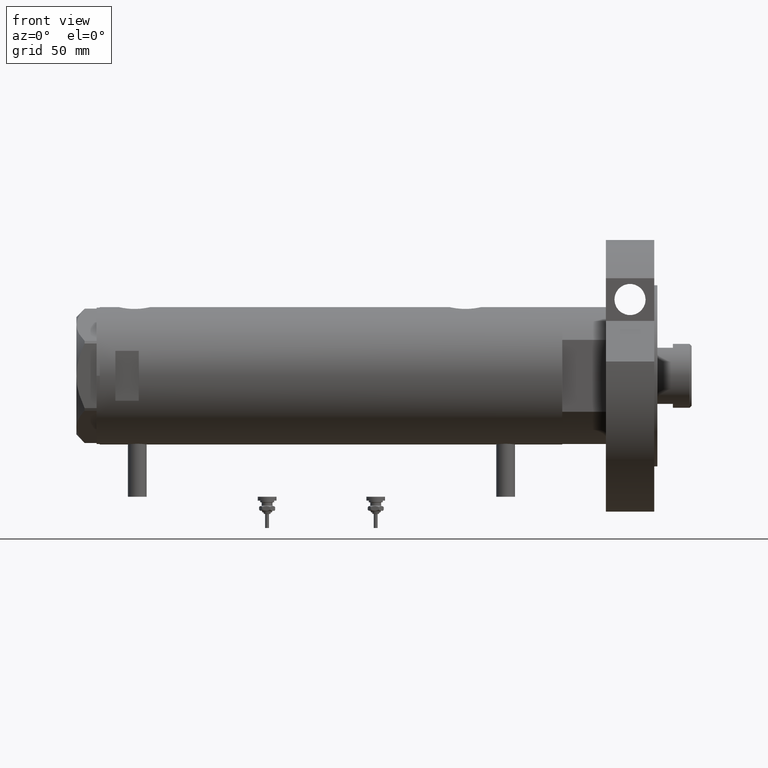
[diagram: clean part render]
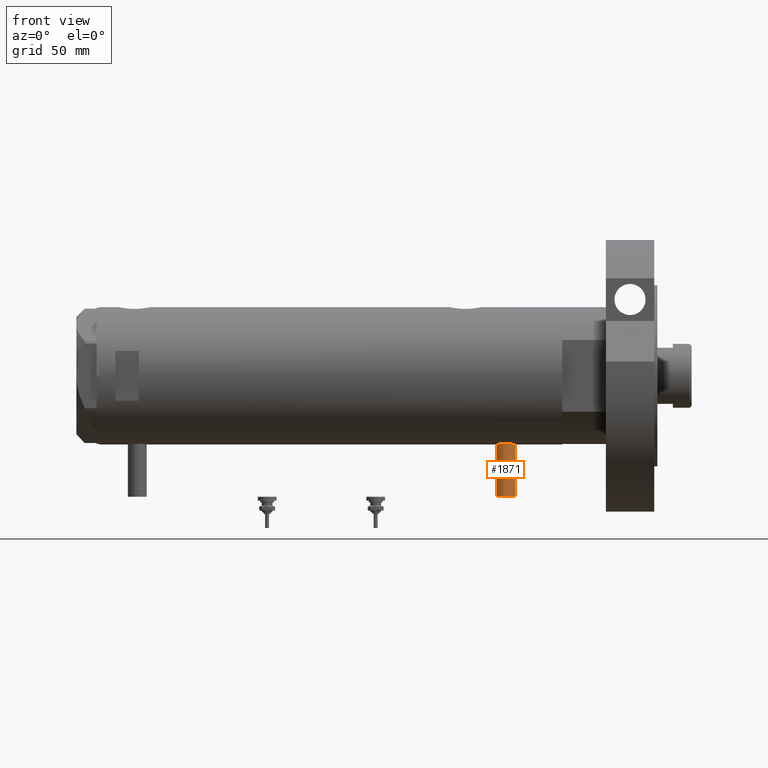
[diagram: same view with one face highlighted and labeled with its STEP entity id]
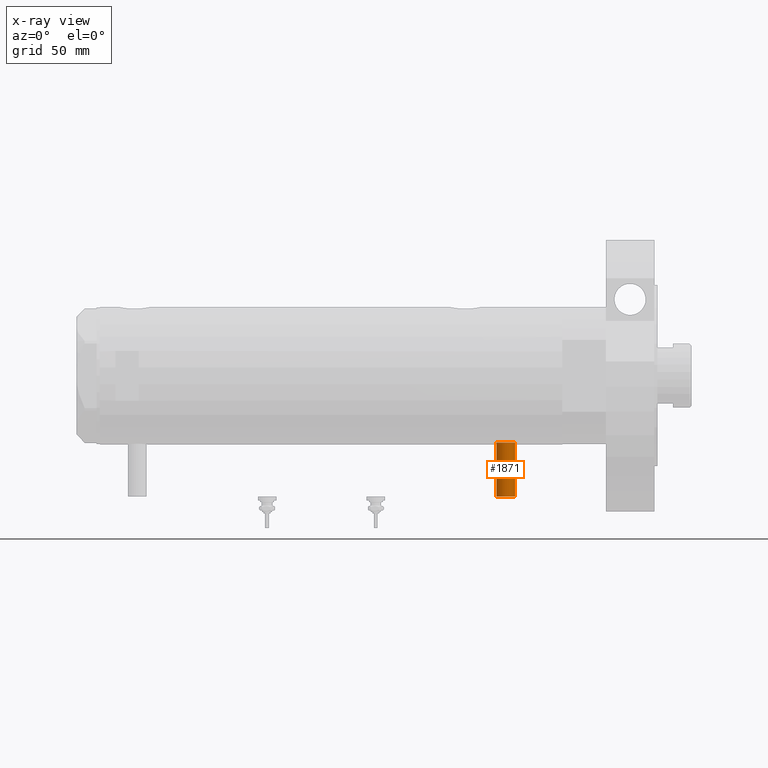
[diagram: x-ray of the same camera — body ghosted, the highlighted face saturated]
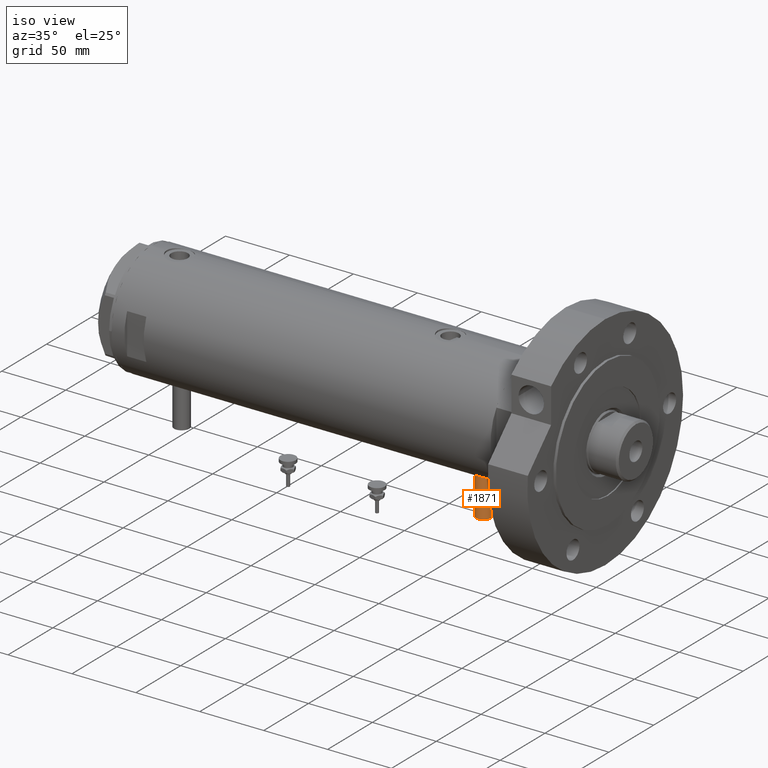
[diagram: same view with one face highlighted and labeled with its STEP entity id]
A machine part, front view. The second image highlights one B-rep face of the part: STEP entity #1871.
The next image is the same camera in x-ray: the body ghosted, the highlighted face saturated — about 0% of this face is hidden behind the body in this view.
A second angle (iso view) of the same face is appended — the face is thin or edge-on in the first view.
In plain terms, the highlighted cylindrical surface (edge-blend (fillet) strip) has radius 6 mm, axis along (0, 0, 1).
Its self-contained STEP definition (entity closure, byte-faithful):
#252 = CARTESIAN_POINT ( 'NONE',  ( -77.50000000000000000, 0.000000000000000000, -111.9000000000000057 ) ) ;
#813 = VECTOR ( 'NONE', #7347, 1000.000000000000000 ) ;
#929 = EDGE_CURVE ( 'NONE', #2206, #3569, #1740, .T. ) ;
#1135 = CARTESIAN_POINT ( 'NONE',  ( -77.50000000000000000, 0.000000000000000000, -117.9000000000000057 ) ) ;
#1233 = FACE_OUTER_BOUND ( 'NONE', #3607, .T. ) ;
#1247 = ORIENTED_EDGE ( 'NONE', *, *, #929, .F. ) ;
#1544 = DIRECTION ( 'NONE',  ( -1.000000000000000000, 0.000000000000000000, 0.000000000000000000 ) ) ;
#1555 = ORIENTED_EDGE ( 'NONE', *, *, #4932, .T. ) ;
#1740 = LINE ( 'NONE', #5786, #6392 ) ;
#1760 = AXIS2_PLACEMENT_3D ( 'NONE', #5021, #6641, #3230 ) ;
#1871 = ADVANCED_FACE ( 'NONE', ( #1233 ), #2700, .T. ) ;
#2113 = LINE ( 'NONE', #2713, #813 ) ;
#2167 = AXIS2_PLACEMENT_3D ( 'NONE', #5807, #7417, #2297 ) ;
#2206 = VERTEX_POINT ( 'NONE', #2776 ) ;
#2296 = ORIENTED_EDGE ( 'NONE', *, *, #3976, .F. ) ;
#2297 = DIRECTION ( 'NONE',  ( 0.000000000000000000, 0.000000000000000000, 1.000000000000000000 ) ) ;
#2700 = CYLINDRICAL_SURFACE ( 'NONE', #1760, 6.000000000000005329 ) ;
#2713 = CARTESIAN_POINT ( 'NONE',  ( -77.50000000000000000, 0.000000000000000000, -117.9000000000000057 ) ) ;
#2776 = CARTESIAN_POINT ( 'NONE',  ( -77.50000000000000000, 7.347880794884119736E-16, -105.8999999999999915 ) ) ;
#3230 = DIRECTION ( 'NONE',  ( 0.000000000000000000, 0.000000000000000000, -1.000000000000000000 ) ) ;
#3558 = VERTEX_POINT ( 'NONE', #6218 ) ;
#3569 = VERTEX_POINT ( 'NONE', #4971 ) ;
#3607 = EDGE_LOOP ( 'NONE', ( #1247, #2296, #1555, #6882 ) ) ;
#3976 = EDGE_CURVE ( 'NONE', #5836, #2206, #5664, .T. ) ;
#4932 = EDGE_CURVE ( 'NONE', #5836, #3558, #2113, .T. ) ;
#4971 = CARTESIAN_POINT ( 'NONE',  ( -42.79999999999999716, 7.347880794884119736E-16, -105.8999999999999915 ) ) ;
#5021 = CARTESIAN_POINT ( 'NONE',  ( -77.50000000000000000, 0.000000000000000000, -111.9000000000000057 ) ) ;
#5457 = DIRECTION ( 'NONE',  ( 0.000000000000000000, 0.000000000000000000, 1.000000000000000000 ) ) ;
#5664 = CIRCLE ( 'NONE', #7391, 6.000000000000005329 ) ;
#5786 = CARTESIAN_POINT ( 'NONE',  ( -77.50000000000000000, 7.347880794884122694E-16, -105.8999999999999915 ) ) ;
#5807 = CARTESIAN_POINT ( 'NONE',  ( -42.79999999999999716, 0.000000000000000000, -111.9000000000000057 ) ) ;
#5836 = VERTEX_POINT ( 'NONE', #1135 ) ;
#6064 = CIRCLE ( 'NONE', #2167, 6.000000000000005329 ) ;
#6218 = CARTESIAN_POINT ( 'NONE',  ( -42.79999999999999716, 0.000000000000000000, -117.9000000000000057 ) ) ;
#6371 = DIRECTION ( 'NONE',  ( 1.000000000000000000, -0.000000000000000000, -0.000000000000000000 ) ) ;
#6392 = VECTOR ( 'NONE', #6371, 1000.000000000000000 ) ;
#6641 = DIRECTION ( 'NONE',  ( 1.000000000000000000, -0.000000000000000000, -0.000000000000000000 ) ) ;
#6882 = ORIENTED_EDGE ( 'NONE', *, *, #7231, .T. ) ;
#7231 = EDGE_CURVE ( 'NONE', #3558, #3569, #6064, .T. ) ;
#7347 = DIRECTION ( 'NONE',  ( 1.000000000000000000, -0.000000000000000000, -0.000000000000000000 ) ) ;
#7391 = AXIS2_PLACEMENT_3D ( 'NONE', #252, #1544, #5457 ) ;
#7417 = DIRECTION ( 'NONE',  ( -1.000000000000000000, 0.000000000000000000, 0.000000000000000000 ) ) ;